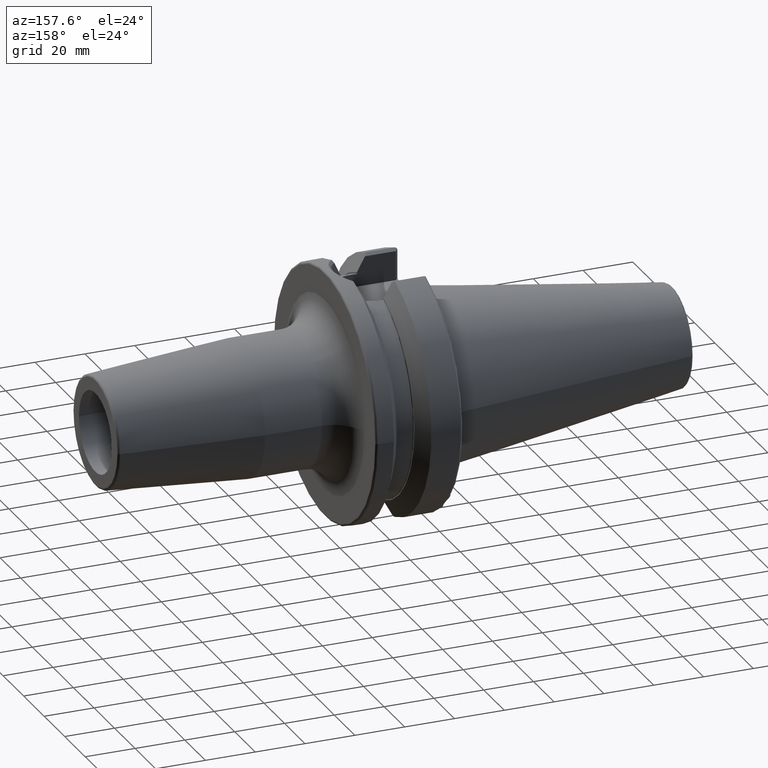
[diagram: clean part render]
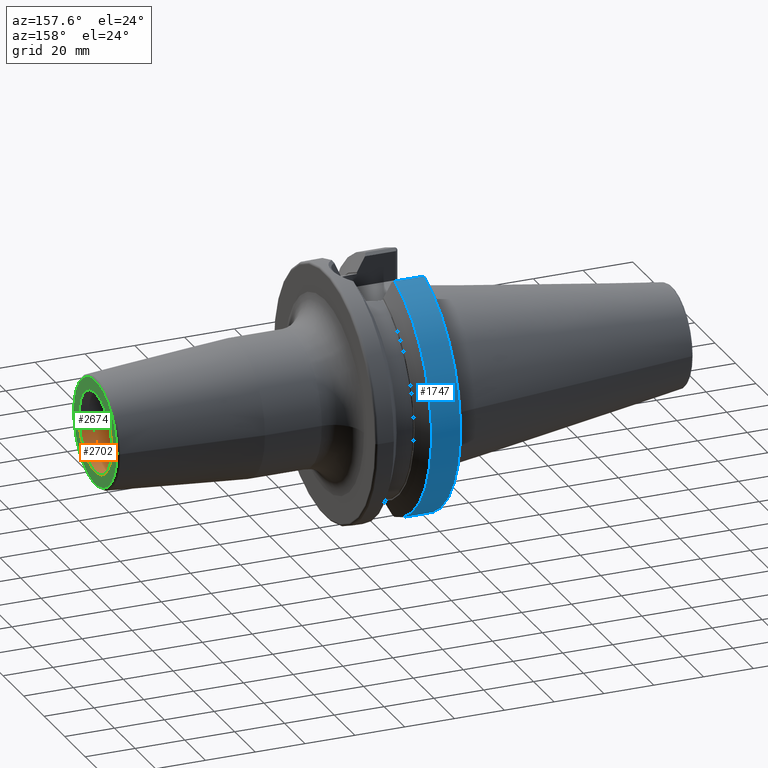
[diagram: same view with three faces highlighted in distinct colors, each labeled with its STEP entity id]
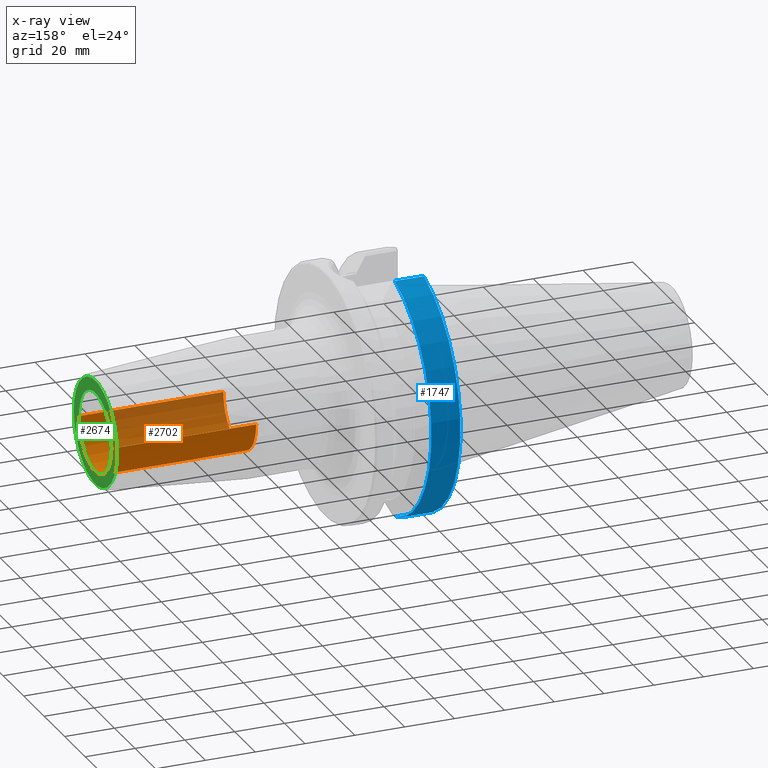
[diagram: x-ray of the same camera — body ghosted, the three highlighted faces saturated]
A machine part, auxiliary view with three faces highlighted in distinct colors.
The next image is the same camera in x-ray (body ghosted, the three faces saturated) — at least one of them is partly hidden behind the body in this view.
Their STEP definitions:

[orange] entity #2702 — the highlighted cylindrical surface (partial cylindrical patch) has radius 16 mm, axis along (1, 0, 0).
#915=CARTESIAN_POINT('',(1.3E2,0.E0,0.E0));
#916=DIRECTION('',(1.E0,0.E0,0.E0));
#917=DIRECTION('',(0.E0,-1.E0,0.E0));
#918=AXIS2_PLACEMENT_3D('',#915,#916,#917);
#930=DIRECTION('',(-1.E0,0.E0,0.E0));
#931=VECTOR('',#930,5.8E1);
#932=CARTESIAN_POINT('',(1.3E2,-1.6E1,0.E0));
#933=LINE('',#932,#931);
#934=DIRECTION('',(-1.E0,0.E0,0.E0));
#935=VECTOR('',#934,5.8E1);
#936=CARTESIAN_POINT('',(1.3E2,1.6E1,0.E0));
#937=LINE('',#936,#935);
#938=CARTESIAN_POINT('',(7.2E1,0.E0,0.E0));
#939=DIRECTION('',(1.E0,0.E0,0.E0));
#940=DIRECTION('',(0.E0,-1.E0,0.E0));
#941=AXIS2_PLACEMENT_3D('',#938,#939,#940);
#1395=CARTESIAN_POINT('',(7.2E1,-1.6E1,0.E0));
#1396=CARTESIAN_POINT('',(7.2E1,1.6E1,0.E0));
#1397=VERTEX_POINT('',#1395);
#1398=VERTEX_POINT('',#1396);
#1399=CARTESIAN_POINT('',(1.3E2,1.6E1,0.E0));
#1400=CARTESIAN_POINT('',(1.3E2,-1.6E1,0.E0));
#1401=VERTEX_POINT('',#1399);
#1402=VERTEX_POINT('',#1400);
#2690=CARTESIAN_POINT('',(6.91E1,0.E0,0.E0));
#2691=DIRECTION('',(1.E0,0.E0,0.E0));
#2692=DIRECTION('',(0.E0,-1.E0,0.E0));
#2693=AXIS2_PLACEMENT_3D('',#2690,#2691,#2692);
#2694=CYLINDRICAL_SURFACE('',#2693,1.6E1);
#2695=ORIENTED_EDGE('',*,*,#2670,.F.);
#2696=ORIENTED_EDGE('',*,*,#2685,.T.);
#2698=ORIENTED_EDGE('',*,*,#2697,.T.);
#2699=ORIENTED_EDGE('',*,*,#2681,.F.);
#2700=EDGE_LOOP('',(#2695,#2696,#2698,#2699));
#2701=FACE_OUTER_BOUND('',#2700,.F.);
#2702=ADVANCED_FACE('',(#2701),#2694,.F.);
#919=CIRCLE('',#918,1.6E1);
#942=CIRCLE('',#941,1.6E1);
#2670=EDGE_CURVE('',#1402,#1401,#919,.T.);
#2681=EDGE_CURVE('',#1401,#1398,#937,.T.);
#2685=EDGE_CURVE('',#1402,#1397,#933,.T.);
#2697=EDGE_CURVE('',#1397,#1398,#942,.T.);

[blue] entity #1747 — the highlighted cylindrical surface (partial cylindrical patch) has radius 49.9875 mm, axis along (1, 0, 0).
#227=CARTESIAN_POINT('',(4.E0,0.E0,0.E0));
#228=DIRECTION('',(-1.E0,0.E0,0.E0));
#229=DIRECTION('',(0.E0,2.837968869610E-1,9.588844179312E-1));
#230=AXIS2_PLACEMENT_3D('',#227,#228,#229);
#232=DIRECTION('',(-1.E0,-7.302338022926E-8,-9.708531933347E-8));
#233=VECTOR('',#232,1.166933176412E1);
#234=CARTESIAN_POINT('',(1.566933176383E1,1.386327333875E1,-4.802665727057E1));
#235=LINE('',#234,#233);
#236=CARTESIAN_POINT('',(1.566933176383E1,0.E0,0.E0));
#237=DIRECTION('',(1.E0,0.E0,0.E0));
#238=DIRECTION('',(0.E0,2.773348004750E-1,-9.607733387462E-1));
#239=AXIS2_PLACEMENT_3D('',#236,#237,#238);
#241=DIRECTION('',(9.999999999989E-1,8.887251737038E-7,-1.189757232592E-6));
#242=VECTOR('',#241,1.166933177277E1);
#243=CARTESIAN_POINT('',(3.999999991073E0,1.418628651613E1,4.793224872501E1));
#244=LINE('',#243,#242);
#571=CARTESIAN_POINT('',(3.999999999701E0,1.386327248661E1,-4.802665840350E1));
#1342=CARTESIAN_POINT('',(1.566933176383E1,1.386327333875E1,-4.802665727057E1));
#1343=CARTESIAN_POINT('',(1.566933176383E1,1.418629688696E1,4.793223484134E1));
#1344=VERTEX_POINT('',#1342);
#1345=VERTEX_POINT('',#1343);
#1357=CARTESIAN_POINT('',(4.E0,1.418631682991E1,4.793222893890E1));
#1359=VERTEX_POINT('',#1357);
#1374=VERTEX_POINT('',#571);
#1733=CARTESIAN_POINT('',(-1.0879E2,0.E0,0.E0));
#1734=DIRECTION('',(1.E0,0.E0,0.E0));
#1735=DIRECTION('',(0.E0,-1.E0,0.E0));
#1736=AXIS2_PLACEMENT_3D('',#1733,#1734,#1735);
#1737=CYLINDRICAL_SURFACE('',#1736,4.99875E1);
#1739=ORIENTED_EDGE('',*,*,#1738,.T.);
#1741=ORIENTED_EDGE('',*,*,#1740,.F.);
#1742=ORIENTED_EDGE('',*,*,#1686,.T.);
#1744=ORIENTED_EDGE('',*,*,#1743,.F.);
#1745=EDGE_LOOP('',(#1739,#1741,#1742,#1744));
#1746=FACE_OUTER_BOUND('',#1745,.F.);
#1747=ADVANCED_FACE('',(#1746),#1737,.T.);
#231=CIRCLE('',#230,4.99875E1);
#240=CIRCLE('',#239,4.99875E1);
#1686=EDGE_CURVE('',#1344,#1345,#240,.T.);
#1738=EDGE_CURVE('',#1359,#1374,#231,.T.);
#1740=EDGE_CURVE('',#1344,#1374,#235,.T.);
#1743=EDGE_CURVE('',#1359,#1345,#244,.T.);

[green] entity #2674 — the highlighted planar face has unit normal (1, 0, 0).
#910=CARTESIAN_POINT('',(1.3E2,0.E0,0.E0));
#911=DIRECTION('',(1.E0,0.E0,0.E0));
#912=DIRECTION('',(0.E0,1.E0,0.E0));
#913=AXIS2_PLACEMENT_3D('',#910,#911,#912);
#915=CARTESIAN_POINT('',(1.3E2,0.E0,0.E0));
#916=DIRECTION('',(1.E0,0.E0,0.E0));
#917=DIRECTION('',(0.E0,-1.E0,0.E0));
#918=AXIS2_PLACEMENT_3D('',#915,#916,#917);
#920=CARTESIAN_POINT('',(1.3E2,0.E0,0.E0));
#921=DIRECTION('',(-1.E0,0.E0,0.E0));
#922=DIRECTION('',(0.E0,1.E0,0.E0));
#923=AXIS2_PLACEMENT_3D('',#920,#921,#922);
#925=CARTESIAN_POINT('',(1.3E2,0.E0,0.E0));
#926=DIRECTION('',(-1.E0,0.E0,0.E0));
#927=DIRECTION('',(0.E0,-1.E0,0.E0));
#928=AXIS2_PLACEMENT_3D('',#925,#926,#927);
#1399=CARTESIAN_POINT('',(1.3E2,1.6E1,0.E0));
#1400=CARTESIAN_POINT('',(1.3E2,-1.6E1,0.E0));
#1401=VERTEX_POINT('',#1399);
#1402=VERTEX_POINT('',#1400);
#1415=CARTESIAN_POINT('',(1.3E2,2.107560950834E1,0.E0));
#1416=CARTESIAN_POINT('',(1.3E2,-2.107560950834E1,0.E0));
#1417=VERTEX_POINT('',#1415);
#1418=VERTEX_POINT('',#1416);
#2659=CARTESIAN_POINT('',(1.3E2,0.E0,0.E0));
#2660=DIRECTION('',(1.E0,0.E0,0.E0));
#2661=DIRECTION('',(0.E0,-1.E0,0.E0));
#2662=AXIS2_PLACEMENT_3D('',#2659,#2660,#2661);
#2663=PLANE('',#2662);
#2664=ORIENTED_EDGE('',*,*,#2626,.T.);
#2665=ORIENTED_EDGE('',*,*,#2641,.T.);
#2666=EDGE_LOOP('',(#2664,#2665));
#2667=FACE_OUTER_BOUND('',#2666,.F.);
#2669=ORIENTED_EDGE('',*,*,#2668,.T.);
#2671=ORIENTED_EDGE('',*,*,#2670,.T.);
#2672=EDGE_LOOP('',(#2669,#2671));
#2673=FACE_BOUND('',#2672,.F.);
#2674=ADVANCED_FACE('',(#2667,#2673),#2663,.T.);
#914=CIRCLE('',#913,1.6E1);
#919=CIRCLE('',#918,1.6E1);
#924=CIRCLE('',#923,2.107560950834E1);
#929=CIRCLE('',#928,2.107560950834E1);
#2626=EDGE_CURVE('',#1417,#1418,#924,.T.);
#2641=EDGE_CURVE('',#1418,#1417,#929,.T.);
#2668=EDGE_CURVE('',#1401,#1402,#914,.T.);
#2670=EDGE_CURVE('',#1402,#1401,#919,.T.);